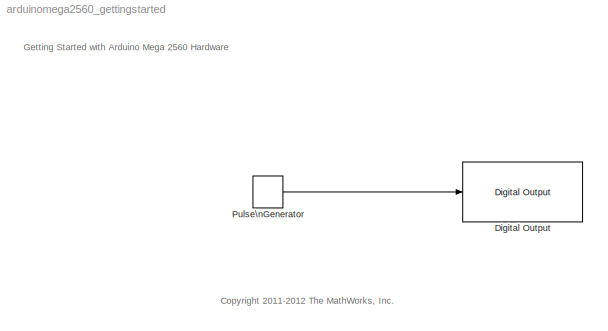
MODEL arduinomega2560_gettingstarted
KIND model
BLOCK [Reference] Digital Output  REF=arduinolib/Digital Output
  Ports = [1]
  SID = 39
  SourceBlock = arduinolib/Digital Output
  SourceProductBaseCode = ARDUINO
  SourceProductName = Simulink Support Package for Arduino Hardware
  SourceType = Arduino Digital Output
  pinNumber = 9
BLOCK [DiscretePulseGenerator] Pulse\nGenerator
  Period = 10
  Ports = [0, 1]
  PulseWidth = 5
  SID = 42
  SampleTime = 0.1
ANNOTATION (root): <copyright redacted>
ANNOTATION (root): Getting Started with Arduino Mega 2560 Hardware
LINE Pulse\nGenerator:1 -> Digital Output:1
